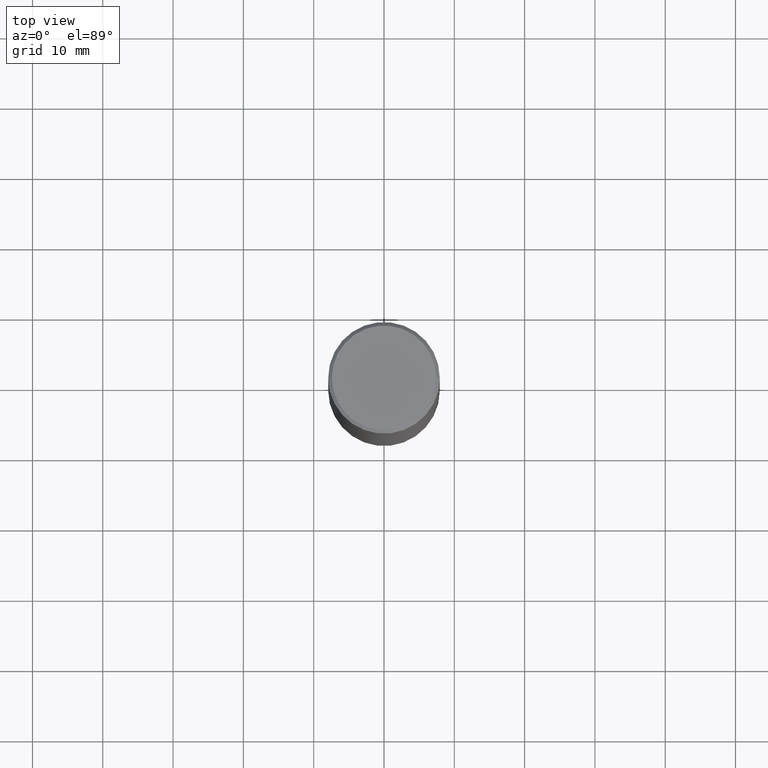
[diagram: clean part render]
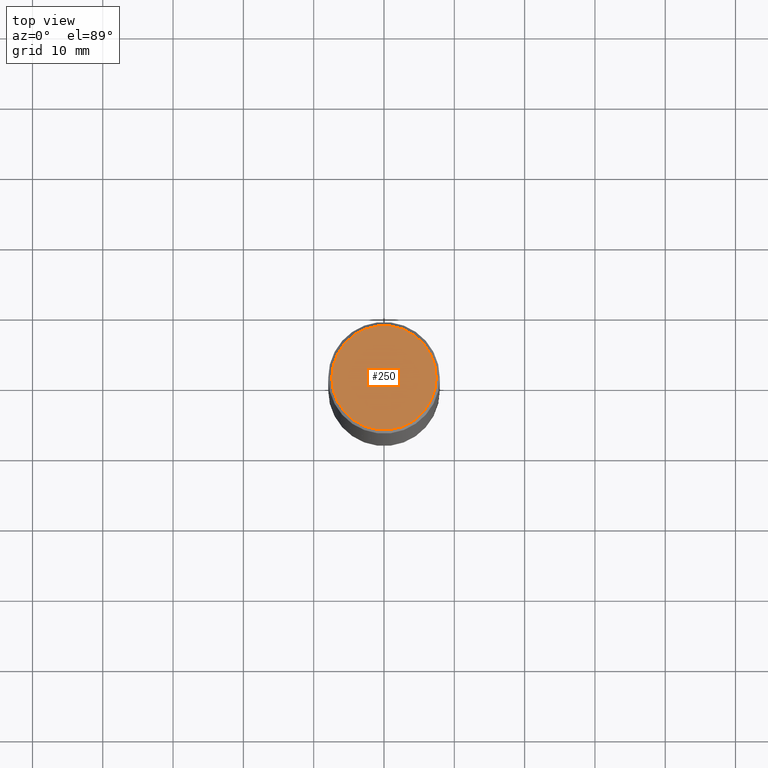
[diagram: same view with one face highlighted and labeled with its STEP entity id]
A machine part, top view. The second image highlights one B-rep face of the part: STEP entity #250.
In plain terms, the highlighted planar face has unit normal (0, -0, -1).
Its self-contained STEP definition (entity closure, byte-faithful):
#53 = CARTESIAN_POINT ( 'NONE',  ( 2.042516583223231356E-15, 0.2924999999999997602, -1.019124035366569212E-15 ) ) ;
#57 = CARTESIAN_POINT ( 'NONE',  ( -0.2924999999999997602, 2.077431396611662611E-15, 4.268512490086005323E-18 ) ) ;
#60 = AXIS2_PLACEMENT_3D ( 'NONE', #342, #306, #157 ) ;
#64 = EDGE_LOOP ( 'NONE', ( #121, #255 ) ) ;
#79 = DIRECTION ( 'NONE',  ( 2.438088387897960049E-29, -3.491481338843145188E-15, -1.000000000000000000 ) ) ;
#94 = AXIS2_PLACEMENT_3D ( 'NONE', #53, #79, #108 ) ;
#108 = DIRECTION ( 'NONE',  ( -1.000000000000000000, 6.982962677686265922E-15, -4.876176775795935793E-29 ) ) ;
#121 = ORIENTED_EDGE ( 'NONE', *, *, #276, .T. ) ;
#153 = CIRCLE ( 'NONE', #205, 0.2924999999999997602 ) ;
#154 = CARTESIAN_POINT ( 'NONE',  ( 0.2924999999999997602, -2.110215457714318353E-15, 4.268512490114932791E-18 ) ) ;
#157 = DIRECTION ( 'NONE',  ( 1.000000000000000000, -6.982962677686266711E-15, 4.876067333457693400E-29 ) ) ;
#158 = DIRECTION ( 'NONE',  ( 1.000000000000000000, -6.982962677686266711E-15, 4.876067333457693400E-29 ) ) ;
#167 = CARTESIAN_POINT ( 'NONE',  ( -1.043851414335219820E-46, 1.490343170380447200E-32, 4.268512490100411279E-18 ) ) ;
#176 = VERTEX_POINT ( 'NONE', #154 ) ;
#205 = AXIS2_PLACEMENT_3D ( 'NONE', #167, #363, #158 ) ;
#246 = EDGE_CURVE ( 'NONE', #176, #347, #153, .T. ) ;
#250 = ADVANCED_FACE ( 'NONE', ( #283 ), #337, .F. ) ;
#253 = CIRCLE ( 'NONE', #60, 0.2924999999999997602 ) ;
#255 = ORIENTED_EDGE ( 'NONE', *, *, #246, .T. ) ;
#276 = EDGE_CURVE ( 'NONE', #347, #176, #253, .T. ) ;
#283 = FACE_OUTER_BOUND ( 'NONE', #64, .T. ) ;
#306 = DIRECTION ( 'NONE',  ( -2.445468806185136597E-29, 3.491481338843145583E-15, 1.000000000000000000 ) ) ;
#337 = PLANE ( 'NONE',  #94 ) ;
#342 = CARTESIAN_POINT ( 'NONE',  ( -1.043851414335219820E-46, 1.490343170380447200E-32, 4.268512490100411279E-18 ) ) ;
#347 = VERTEX_POINT ( 'NONE', #57 ) ;
#363 = DIRECTION ( 'NONE',  ( -2.445468806185136597E-29, 3.491481338843145583E-15, 1.000000000000000000 ) ) ;